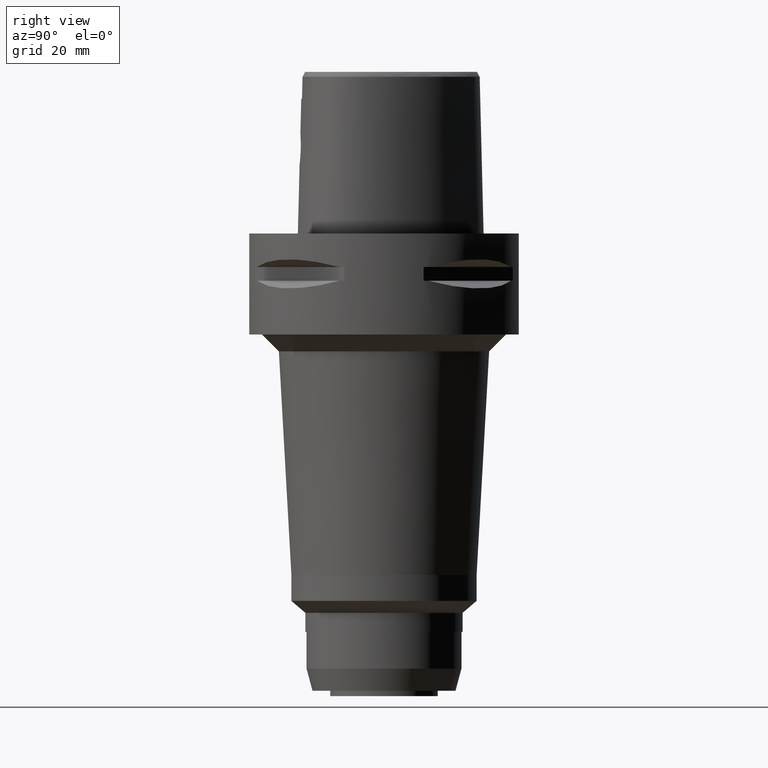
[diagram: clean part render]
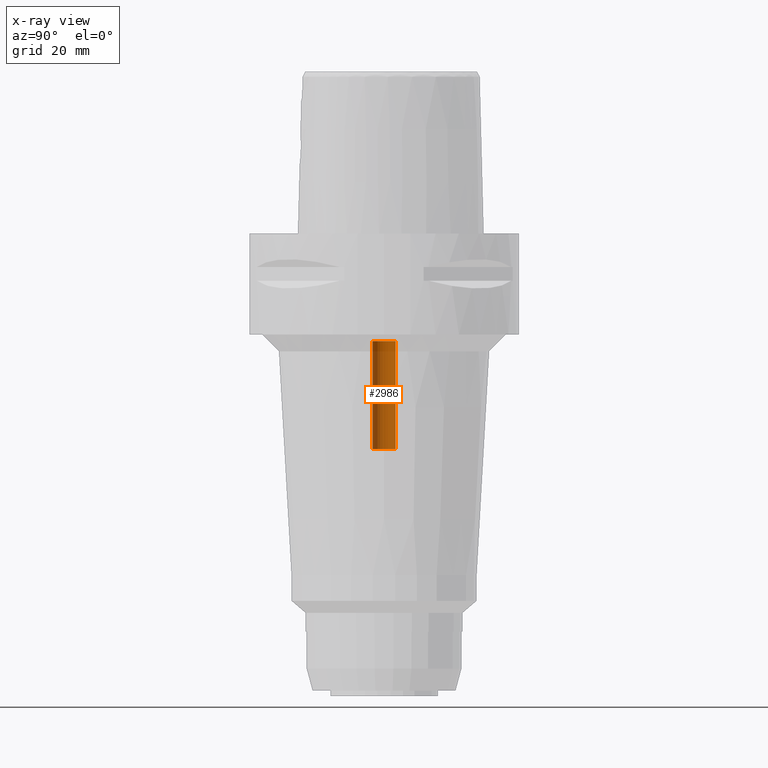
[diagram: x-ray — body ghosted, one internal face saturated and labeled with its STEP entity id]
A machine part, right view, then the same camera in x-ray: the body is ghosted and one INTERNAL B-rep face — a face not visible from any outside direction — is saturated and labeled: STEP entity #2986.
In plain terms, the highlighted cylindrical surface (edge-blend (fillet) strip) has radius 3.4 mm, axis along (0, 0, -1).
Its self-contained STEP definition (entity closure, byte-faithful):
#892=CARTESIAN_POINT('',(0.E0,1.308780034249E-14,-6.4E1));
#893=DIRECTION('',(0.E0,0.E0,-1.E0));
#894=DIRECTION('',(0.E0,-1.E0,0.E0));
#895=AXIS2_PLACEMENT_3D('',#892,#893,#894);
#908=DIRECTION('',(0.E0,0.E0,1.E0));
#909=VECTOR('',#908,3.2E1);
#910=CARTESIAN_POINT('',(0.E0,-3.4E0,-6.4E1));
#911=LINE('',#910,#909);
#915=DIRECTION('',(0.E0,0.E0,1.E0));
#916=VECTOR('',#915,3.2E1);
#917=CARTESIAN_POINT('',(0.E0,3.4E0,-6.4E1));
#918=LINE('',#917,#916);
#946=CARTESIAN_POINT('',(0.E0,1.308780034249E-14,-3.2E1));
#947=DIRECTION('',(0.E0,0.E0,1.E0));
#948=DIRECTION('',(0.E0,1.E0,0.E0));
#949=AXIS2_PLACEMENT_3D('',#946,#947,#948);
#1738=CARTESIAN_POINT('',(0.E0,-3.4E0,-6.4E1));
#1739=CARTESIAN_POINT('',(0.E0,3.4E0,-6.4E1));
#1740=VERTEX_POINT('',#1738);
#1741=VERTEX_POINT('',#1739);
#1742=CARTESIAN_POINT('',(0.E0,3.4E0,-3.2E1));
#1743=VERTEX_POINT('',#1742);
#1744=CARTESIAN_POINT('',(0.E0,-3.4E0,-3.2E1));
#1745=VERTEX_POINT('',#1744);
#2972=CARTESIAN_POINT('',(0.E0,1.308780034249E-14,6.87E0));
#2973=DIRECTION('',(0.E0,0.E0,-1.E0));
#2974=DIRECTION('',(0.E0,-1.E0,0.E0));
#2975=AXIS2_PLACEMENT_3D('',#2972,#2973,#2974);
#2976=CYLINDRICAL_SURFACE('',#2975,3.4E0);
#2978=ORIENTED_EDGE('',*,*,#2977,.F.);
#2979=ORIENTED_EDGE('',*,*,#2965,.F.);
#2981=ORIENTED_EDGE('',*,*,#2980,.T.);
#2983=ORIENTED_EDGE('',*,*,#2982,.F.);
#2984=EDGE_LOOP('',(#2978,#2979,#2981,#2983));
#2985=FACE_OUTER_BOUND('',#2984,.F.);
#896=CIRCLE('',#895,3.4E0);
#950=CIRCLE('',#949,3.4E0);
#2965=EDGE_CURVE('',#1740,#1741,#896,.T.);
#2977=EDGE_CURVE('',#1741,#1743,#918,.T.);
#2980=EDGE_CURVE('',#1740,#1745,#911,.T.);
#2982=EDGE_CURVE('',#1743,#1745,#950,.T.);
#2986=ADVANCED_FACE('',(#2985),#2976,.F.);